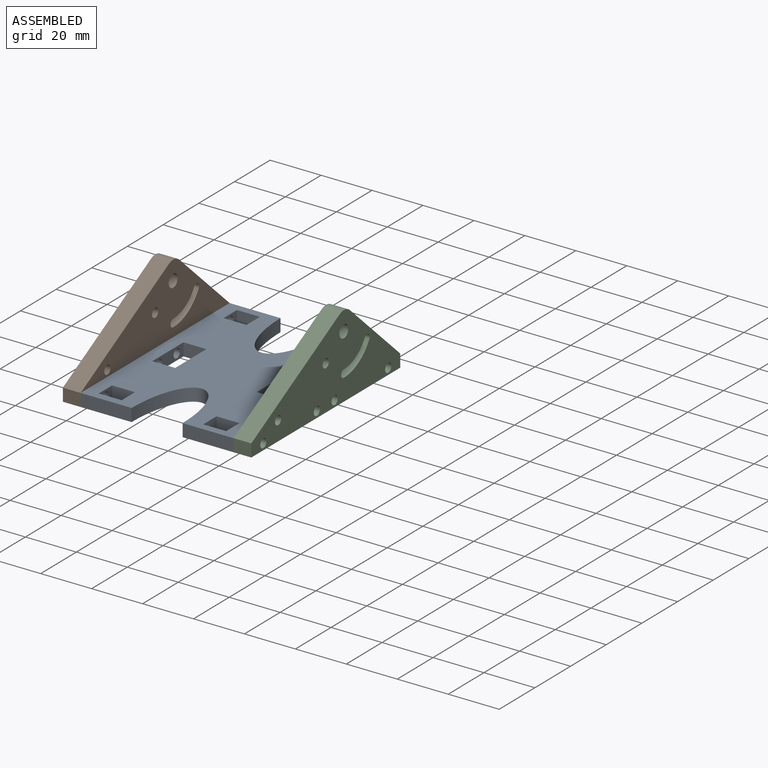
[diagram: assembled view]
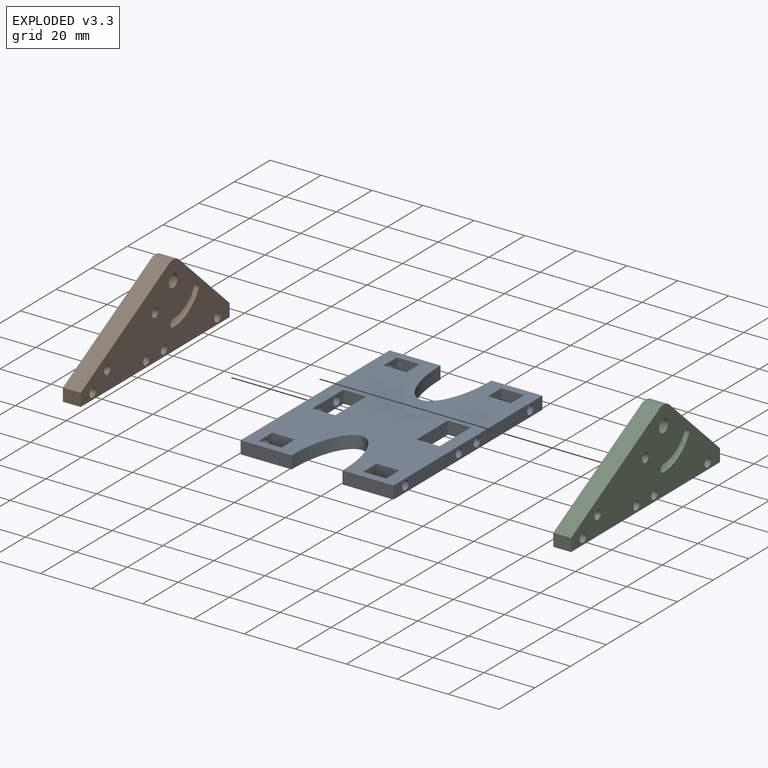
[diagram: exploded view]
GUIDED TOUR — FREECAD ASSEMBLY "Wedge-3"

This assembly has 3 components, labeled P0..P2 below (a component is one placed body or linked part; the same part can appear more than once), held together by 0 modeled joints plus 2 derived contact edges. A joint is a constraint between two components; its type names the relative motion it leaves free:
  CONTACT — a derived adjacency edge — the two components touch in the source model (clearance under 2% of the assembly's diagonal); it is measured from the geometry, not a modeled constraint.
Axis/direction vectors are unit vectors and 'through' points are millimeter coordinates, both in the assembly's world frame.

MATES
  1. CONTACT "contact_0_1": P0 <-> P1, contact direction (-1.000, 0.000, 0.000) through (0.00, -3.44, 2.93) mm (derived from contact, not a modeled constraint)
  2. CONTACT "contact_0_2": P0 <-> P2, contact direction (1.000, 0.000, 0.000) through (60.00, 31.62, 5.00) mm (derived from contact, not a modeled constraint)

ASSEMBLY ORDER
  1. P1 — the base component [order verified]
  2. P0 [order verified]
  3. P2 [order verified]
Order-tag legend:
  [order verified] — this step's position reverses a verified removal order: the component was checked to insert without passing through the ones already placed.

Of the 3 components, 3 carry a construction recipe — the FreeCAD feature program (sketches with constraints, then the solid features that consume them) that regenerates the part from scratch, quoted from this document or from the linked companion document it references; the rest are supplied as boundary geometry only. The tour below walks the components in assembly order: each is shown spotlighted twice — in the assembled view, then in the exploded view, where a leader line traces a displaced component back to its assembled socket (components that stay in place when exploded have no leader line; saturated green if recipe-attached, orange if geometry-only; every other component desaturated gray) — followed by its recipe or geometry summary and the mates that hold it.
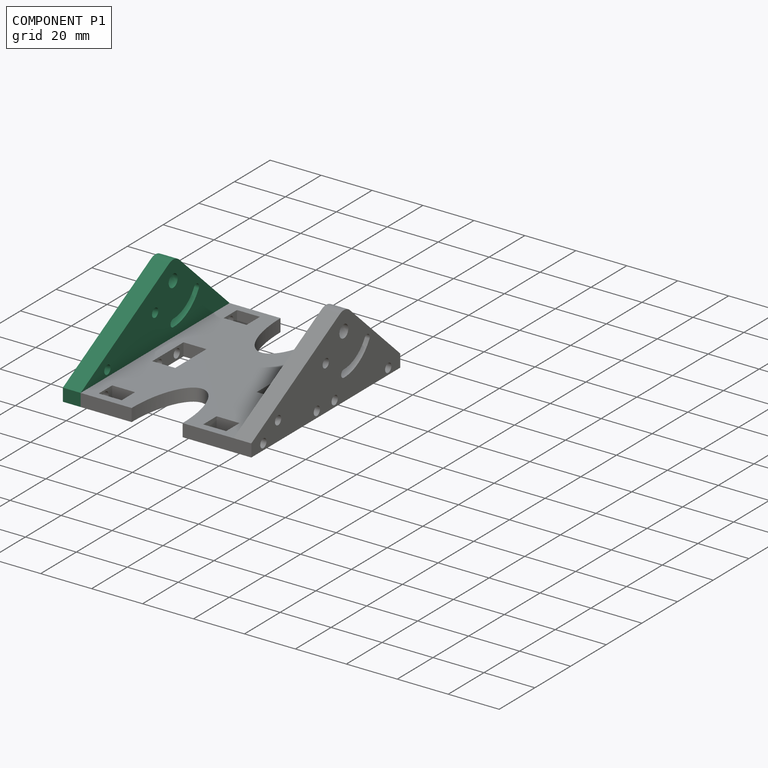
[diagram: component P1 — assembled]
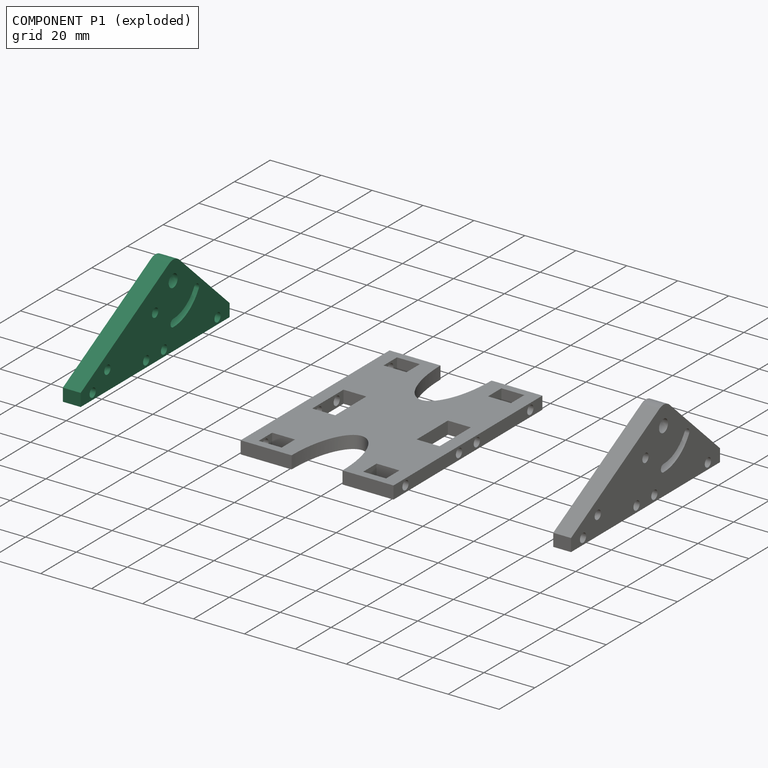
[diagram: component P1 — exploded]
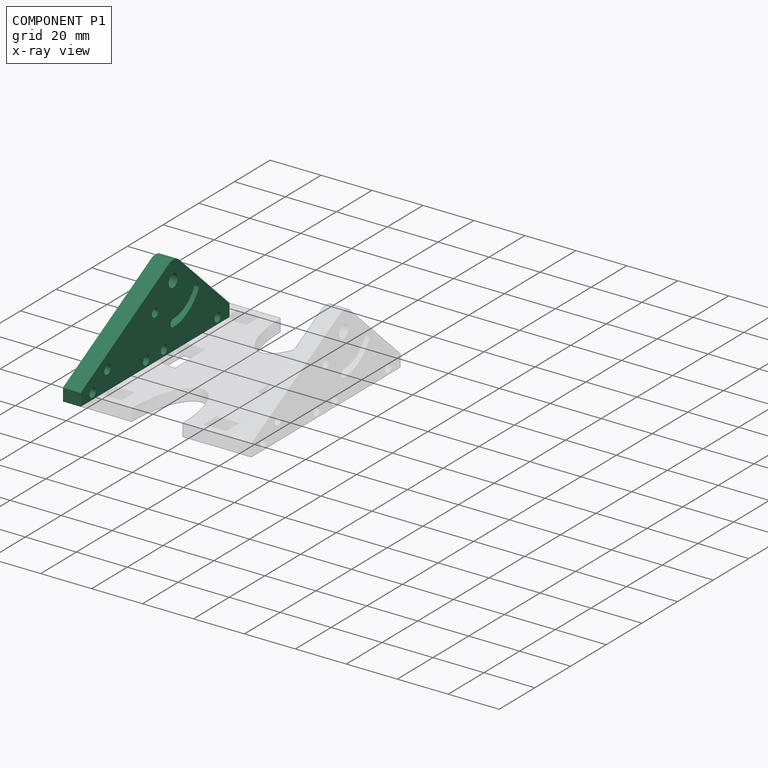
[diagram: component P1 — x-ray view]
COMPONENT P1 — recipe-attached ("Wedge Side001", modeled in this document).
Held by: resting contact with P0 (derived edge).
Construction recipe (the document's own serialized feature program — sketch geometry with constraints, then the solid features built on it; lengths are millimeters unless a unit is written):

FEATURE [Sketcher::SketchObject] Sketch002
  ArcFitTolerance = 1e-06
  AttachmentSupport = -> [YZ_Plane003]
  FullyConstrained = true
  MakeInternals = false
  MapMode = 5
  Placement = pos=(0,0,0) rot=(0.57735,0.57735,0.57735;2.0944rad)
  sketch-geometry (28):
    g0: LineSegment StartX=-51.8817 StartY=0 StartZ=0 EndX=31.6183 EndY=0 EndZ=0
    g1: Circle CenterX=0 CenterY=25 CenterZ=0 NormalX=0 NormalY=0 NormalZ=1 AngleXU=0 Radius=2.5
    g2: ArcOfCircle CenterX=0 CenterY=25 CenterZ=0 NormalX=0 NormalY=0 NormalZ=1 AngleXU=0 Radius=16.5 StartAngle=4.71239 EndAngle=5.75959
    g3: ArcOfCircle CenterX=12.9904 CenterY=17.5 CenterZ=0 NormalX=0 NormalY=0 NormalZ=1 AngleXU=0 Radius=1.5 StartAngle=5.75959 EndAngle=8.90118
    g4: ArcOfCircle CenterX=0 CenterY=10 CenterZ=0 NormalX=0 NormalY=0 NormalZ=1 AngleXU=0 Radius=1.5 StartAngle=1.5708 EndAngle=4.71239
    g5: ArcOfCircle CenterX=0 CenterY=25 CenterZ=0 NormalX=0 NormalY=0 NormalZ=1 AngleXU=0 Radius=13.5 StartAngle=4.71239 EndAngle=5.75959
    g6: LineSegment StartX=-51.8817 StartY=0 StartZ=0 EndX=-51.8817 EndY=5 EndZ=0
    g7: LineSegment StartX=31.6183 StartY=0 StartZ=0 EndX=31.6183 EndY=5 EndZ=0
    g8: LineSegment StartX=3.3997 StartY=31.1663 StartZ=0 EndX=31.6183 EndY=5 EndZ=0
    g9: ArcOfCircle CenterX=0 CenterY=27.5 CenterZ=0 NormalX=0 NormalY=0 NormalZ=1 AngleXU=0 Radius=5 StartAngle=0.823116 EndAngle=2.06853
    g10: Circle CenterX=-36.8817 CenterY=7.5 CenterZ=0 NormalX=0 NormalY=0 NormalZ=1 AngleXU=0 Radius=1.75
    g11: Circle CenterX=-45.1317 CenterY=2.5 CenterZ=0 NormalX=0 NormalY=0 NormalZ=1 AngleXU=0 Radius=1.75
    g12: Circle CenterX=-15.1317 CenterY=2.5 CenterZ=0 NormalX=0 NormalY=0 NormalZ=1 AngleXU=0 Radius=1.75
    g13: Circle CenterX=24.8683 CenterY=2.5 CenterZ=0 NormalX=0 NormalY=0 NormalZ=1 AngleXU=0 Radius=1.75
    g14: Circle CenterX=-5.13173 CenterY=2.5 CenterZ=0 NormalX=0 NormalY=0 NormalZ=1 AngleXU=0 Radius=1.75
    g15: LineSegment [constr] StartX=-45.1317 StartY=2.5 StartZ=0 EndX=-51.8817 EndY=2.5 EndZ=0
    g16: LineSegment [constr] StartX=24.8683 StartY=2.5 StartZ=0 EndX=31.6183 EndY=2.5 EndZ=0
    g17: LineSegment [constr] StartX=-45.1317 StartY=2.5 StartZ=0 EndX=-15.1317 EndY=2.5 EndZ=0
    g18: LineSegment [constr] StartX=-5.13173 StartY=2.5 StartZ=0 EndX=24.8683 EndY=2.5 EndZ=0
    g19: LineSegment StartX=-51.8817 StartY=5 StartZ=0 EndX=-2.38716 EndY=31.8933 EndZ=0
    g20: LineSegment [constr] StartX=0 StartY=27.5 StartZ=0 EndX=0 EndY=32.5 EndZ=0
    g21: LineSegment [constr] StartX=0 StartY=25 StartZ=0 EndX=0 EndY=10 EndZ=0
    g22: LineSegment [constr] StartX=12.9904 StartY=17.5 StartZ=0 EndX=-8e-16 EndY=25 EndZ=0
    g23: LineSegment [constr] StartX=12.9904 StartY=17.5 StartZ=0 EndX=14.0103 EndY=18.5999 EndZ=0
    g24: Circle CenterX=-10.1317 CenterY=17.5 CenterZ=0 NormalX=0 NormalY=0 NormalZ=1 AngleXU=0 Radius=1.75
    g25: LineSegment [constr] StartX=-15.1317 StartY=2.5 StartZ=0 EndX=-5.13173 EndY=2.5 EndZ=0
    g26: LineSegment [constr] StartX=-10.1317 StartY=17.5 StartZ=0 EndX=-10.1317 EndY=2.5 EndZ=0
    g27: LineSegment [constr] StartX=-36.8817 StartY=7.5 StartZ=0 EndX=-36.8817 EndY=2.5 EndZ=0
  constraints (74):
    c: PointOnObject(g0,g-1)
    c: PointOnObject(g0,g-1)
    c: PointOnObject(g1,g-2)
    c: Coincident(g2,g5)
    c: Tangent(g5,g4) = 1.5708
    c: Tangent(g5,g3) = 1.5708
    c: Tangent(g2,g4) = -1.5708
    c: Tangent(g2,g3) = -1.5708
    c: Coincident(g2,g1)
    c: PointOnObject(g4,g-2)
    c: DistanceY(g4) = 10
    c: Coincident(g6,g0)
    c: Vertical(g6)
    c: Coincident(g7,g0)
    c: Vertical(g7)
    c: Coincident(g8,g7)
    c: Equal(g6,g7)
    c: PointOnObject(g9,g-2)
    c: Tangent(g9,g8) = 1.5708
    c: Coincident(g15,g11)
    c: Symmetric(g6,g6,g15)
    c: Horizontal(g15)
    c: Coincident(g16,g13)
    c: Symmetric(g7,g7,g16)
    c: Horizontal(g16)
    c: Equal(g15,g16)
    c: Coincident(g17,g11)
    c: Coincident(g17,g12)
    c: Horizontal(g17)
    c: Coincident(g18,g14)
    c: Coincident(g18,g13)
    c: Horizontal(g18)
    c: Equal(g18,g17)
    c: Diameter(g1) = 5
    c: Equal(g11,g12)
    c: Equal(g12,g14)
    c: Equal(g14,g13)
    c: Diameter(g11) = 3.5
    c: Distance(g11,g6) = 5
    c: DistanceX(g17,g17) = 30
    c: Distance(g6,g6) = 5
    c: Diameter(g3) = 3
    c: Tangent(g19,g9) = 1.5708
    c: Coincident(g19,g6)
    c: Equal(g12,g10)
    c: PointOnObject(g20,g1)
    c: PointOnObject(g20,g9)
    c: Vertical(g20)
    c: DistanceY(g20,g20) = 5
    c: DistanceX(g12,g14) = 10
    c: Coincident(g21,g1)
    c: Coincident(g21,g4)
    c: Coincident(g22,g3)
    c: Coincident(g22,g1)
    c: Angle(g21,g22) = 1.0472
    c: DistanceY(g21,g21) = 15
    c: Coincident(g23,g3)
    c: PointOnObject(g23,g3)
    c: Perpendicular(g8,g23)
    c: Distance(g23,g8) = 2
    c: Coincident(g9,g20)
    c: Equal(g24,g12)
    c: Coincident(g25,g12)
    c: Coincident(g25,g14)
    c: Coincident(g26,g24)
    c: Symmetric(g25,g25,g26)
    c: Vertical(g26)
    c: DistanceY(g26,g26) = 15
    c: Coincident(g27,g10)
    c: PointOnObject(g27,g17)
    c: Vertical(g27)
    c: Distance(g27,g27) = 5
    c: Distance(g6,g27) = 15
    c: Distance(g1,g4) = 15
FEATURE [PartDesign::Pad] Pad001
  Direction = (1,0,0)
  Length = 7
  Length2 = 10
  Placement = pos=(0,0,0) rot=(1,1,1;2.0944rad)
  Profile = -> Sketch002
  ReferenceAxis = -> Sketch002 [N_Axis]
  Refine = true
  Suppressed = false
  Type = 0
FEATURE [PartDesign::Body] Body001
  AllowCompound = false
  Group = -> [Sketch002,Pad001]
  Origin = -> Origin003
  Tip = -> Pad001
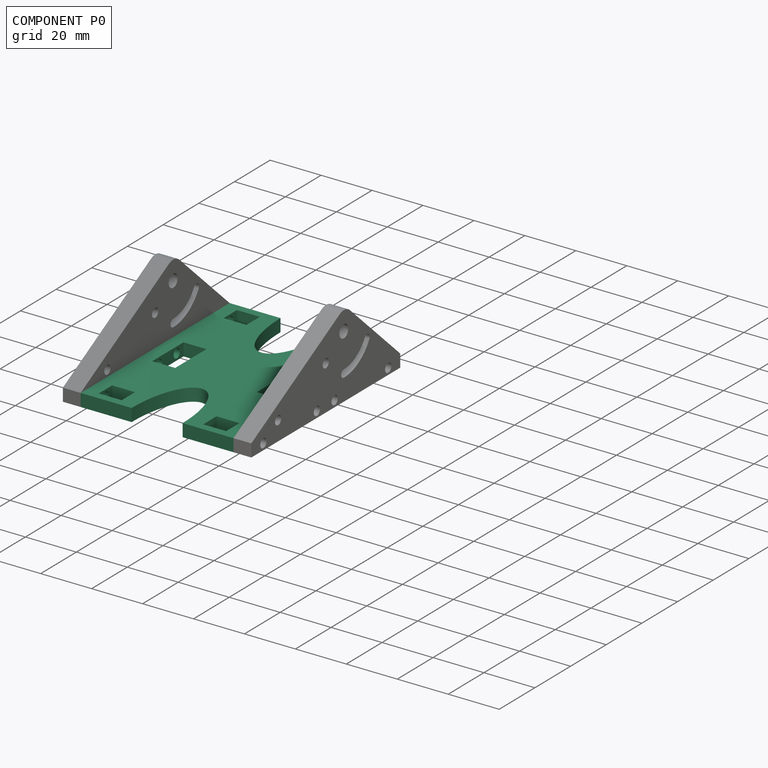
[diagram: component P0 — assembled]
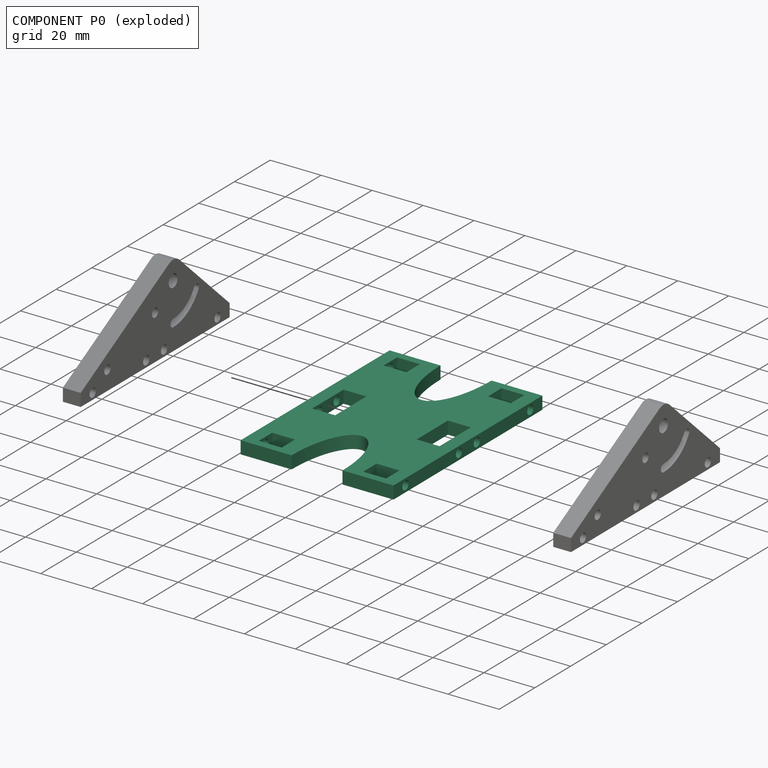
[diagram: component P0 — exploded]
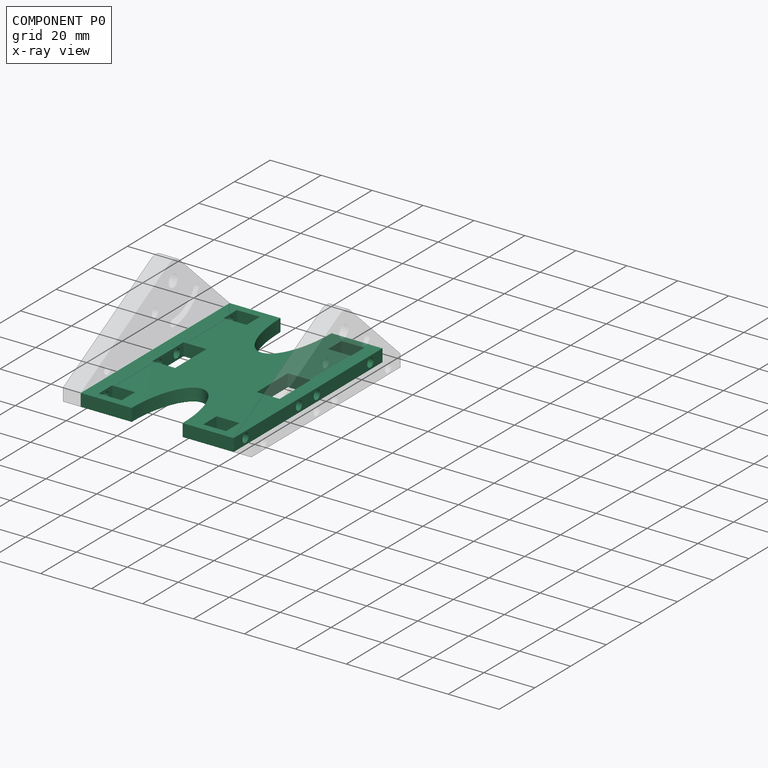
[diagram: component P0 — x-ray view]
COMPONENT P0 — recipe-attached ("Wedge Bottom001", modeled in this document).
Held by: resting contact with P1 (derived edge); resting contact with P2 (derived edge).
Construction recipe (the document's own serialized feature program — sketch geometry with constraints, then the solid features built on it; lengths are millimeters unless a unit is written):

FEATURE [PartDesign::SubShapeBinder] Binder
  BindCopyOnChange = 0
  BindMode = 0
  ClaimChildren = false
  Context = -> Part002 [Body002.Binder.]
  Fuse = false
  MakeFace = true
  OffsetFill = false
  OffsetIntersection = false
  OffsetJoinType = 0
  OffsetOpenResult = false
  PartialLoad = false
  Refine = true
  Relative = true
  Support = -> [Part001[Body001.Pad001.Face19]]
  _Version = 2
FEATURE [Sketcher::SketchObject] Sketch003
  ArcFitTolerance = 1e-06
  AttachmentSupport = -> [YZ_Plane005]
  ExternalGeometry = -> [Binder]
  FullyConstrained = true
  MakeInternals = false
  MapMode = 5
  Placement = pos=(0,0,0) rot=(0.57735,0.57735,0.57735;2.0944rad)
  sketch-geometry (4):
    g0: LineSegment StartX=-51.8817 StartY=5 StartZ=0 EndX=-51.8817 EndY=0 EndZ=0
    g1: LineSegment StartX=-51.8817 StartY=0 StartZ=0 EndX=31.6183 EndY=0 EndZ=0
    g2: LineSegment StartX=31.6183 StartY=0 StartZ=0 EndX=31.6183 EndY=5 EndZ=0
    g3: LineSegment StartX=31.6183 StartY=5 StartZ=0 EndX=-51.8817 EndY=5 EndZ=0
  constraints (10):
    c: Coincident(g0,g1)
    c: Coincident(g1,g2)
    c: Coincident(g2,g3)
    c: Coincident(g3,g0)
    c: Vertical(g0)
    c: Vertical(g2)
    c: Horizontal(g1)
    c: Horizontal(g3)
    c: Coincident(g0,g-3)
    c: Coincident(g1,g-4)
FEATURE [PartDesign::Pad] Pad002
  Direction = (1,0,0)
  Length = 60
  Length2 = 10
  Placement = pos=(0,0,0) rot=(1,1,1;2.0944rad)
  Profile = -> Sketch003
  ReferenceAxis = -> Sketch003 [N_Axis]
  Refine = true
  Suppressed = false
  Type = 0
FEATURE [Sketcher::SketchObject] Sketch004
  ArcFitTolerance = 1e-06
  AttachmentSupport = -> [Pad002]
  ExternalGeometry = -> [Binder]
  FullyConstrained = true
  MakeInternals = false
  MapMode = 5
  Placement = pos=(1.3e-15,0,0) rot=(0.57735,0.57735,-0.57735;4.18879rad)
  sketch-geometry (4):
    g0: Circle CenterX=24.8683 CenterY=-2.5 CenterZ=0 NormalX=0 NormalY=0 NormalZ=1 AngleXU=0 Radius=1.75
    g1: Circle CenterX=-5.13173 CenterY=-2.5 CenterZ=0 NormalX=0 NormalY=0 NormalZ=1 AngleXU=0 Radius=1.75
    g2: Circle CenterX=-15.1317 CenterY=-2.5 CenterZ=0 NormalX=0 NormalY=0 NormalZ=1 AngleXU=0 Radius=1.75
    g3: Circle CenterX=-45.1317 CenterY=-2.5 CenterZ=0 NormalX=0 NormalY=0 NormalZ=1 AngleXU=0 Radius=1.75
  constraints (8):
    c: Coincident(g0,g-3)
    c: Equal(g0,g-3)
    c: Coincident(g1,g-4)
    c: Equal(g1,g-4)
    c: Coincident(g2,g-5)
    c: Equal(g2,g-5)
    c: Coincident(g3,g-6)
    c: Equal(g3,g-6)
FEATURE [Sketcher::SketchObject] Sketch006
  ArcFitTolerance = 1e-06
  AttachmentSupport = -> [Pad002]
  ExternalGeometry = -> [Binder]
  FullyConstrained = true
  MakeInternals = false
  MapMode = 5
  Placement = pos=(60,-7.8e-15,3.9e-15) rot=(0.57735,0.57735,0.57735;2.0944rad)
  sketch-geometry (4):
    g0: Circle CenterX=-45.1317 CenterY=2.5 CenterZ=0 NormalX=0 NormalY=0 NormalZ=1 AngleXU=0 Radius=1.75
    g1: Circle CenterX=-15.1317 CenterY=2.5 CenterZ=0 NormalX=0 NormalY=0 NormalZ=1 AngleXU=0 Radius=1.75
    g2: Circle CenterX=-5.13173 CenterY=2.5 CenterZ=0 NormalX=0 NormalY=0 NormalZ=1 AngleXU=0 Radius=1.75
    g3: Circle CenterX=24.8683 CenterY=2.5 CenterZ=0 NormalX=0 NormalY=0 NormalZ=1 AngleXU=0 Radius=1.75
  constraints (8):
    c: Coincident(g0,g-3)
    c: Equal(g0,g-3)
    c: Coincident(g1,g-4)
    c: Equal(g1,g-4)
    c: Coincident(g2,g-5)
    c: Equal(g2,g-5)
    c: Coincident(g3,g-6)
    c: Equal(g3,g-6)
FEATURE [Sketcher::SketchObject] Sketch005
  ArcFitTolerance = 1e-06
  AttachmentSupport = -> [Pad002]
  ExternalGeometry = -> [Sketch004,Sketch006,Pad002]
  FullyConstrained = true
  MakeInternals = false
  MapMode = 5
  Placement = pos=(-3e-16,1.2e-15,5) rot=(0,0,-1;1.5708rad)
  sketch-geometry (87):
    g0: LineSegment [constr] StartX=-26.6183 StartY=7 StartZ=0 EndX=-23.1183 EndY=7 EndZ=0
    g1: LineSegment [constr] StartX=-23.1183 StartY=7 StartZ=0 EndX=-23.1183 EndY=12 EndZ=0
    g2: LineSegment [constr] StartX=-23.1183 StartY=12 StartZ=0 EndX=-26.6183 EndY=12 EndZ=0
    g3: LineSegment [constr] StartX=-26.6183 StartY=12 StartZ=0 EndX=-26.6183 EndY=7 EndZ=0
    g4: LineSegment [constr] StartX=3.38173 StartY=7 StartZ=0 EndX=16.8817 EndY=7 EndZ=0
    g5: LineSegment [constr] StartX=16.8817 StartY=7 StartZ=0 EndX=16.8817 EndY=12 EndZ=0
    g6: LineSegment [constr] StartX=16.8817 StartY=12 StartZ=0 EndX=3.38173 EndY=12 EndZ=0
    g7: LineSegment [constr] StartX=3.38173 StartY=12 StartZ=0 EndX=3.38173 EndY=7 EndZ=0
    g8: LineSegment [constr] StartX=43.3817 StartY=7 StartZ=0 EndX=46.8817 EndY=7 EndZ=0
    g9: LineSegment [constr] StartX=46.8817 StartY=7 StartZ=0 EndX=46.8817 EndY=12 EndZ=0
    g10: LineSegment [constr] StartX=46.8817 StartY=12 StartZ=0 EndX=43.3817 EndY=12 EndZ=0
    g11: LineSegment [constr] StartX=43.3817 StartY=12 StartZ=0 EndX=43.3817 EndY=7 EndZ=0
    g12: LineSegment [constr] StartX=-31.6183 StartY=30 StartZ=0 EndX=51.8817 EndY=30 EndZ=0
    g13: LineSegment [constr] StartX=-26.6183 StartY=53 StartZ=0 EndX=-23.1183 EndY=53 EndZ=0
    g14: LineSegment [constr] StartX=-23.1183 StartY=53 StartZ=0 EndX=-23.1183 EndY=48 EndZ=0
    g15: LineSegment [constr] StartX=-23.1183 StartY=48 StartZ=0 EndX=-26.6183 EndY=48 EndZ=0
    g16: LineSegment [constr] StartX=-26.6183 StartY=48 StartZ=0 EndX=-26.6183 EndY=53 EndZ=0
    g17: LineSegment [constr] StartX=3.38173 StartY=53 StartZ=0 EndX=16.8817 EndY=53 EndZ=0
    g18: LineSegment [constr] StartX=16.8817 StartY=53 StartZ=0 EndX=16.8817 EndY=48 EndZ=0
    g19: LineSegment [constr] StartX=16.8817 StartY=48 StartZ=0 EndX=3.38173 EndY=48 EndZ=0
    g20: LineSegment [constr] StartX=3.38173 StartY=48 StartZ=0 EndX=3.38173 EndY=53 EndZ=0
    g21: LineSegment [constr] StartX=43.3817 StartY=53 StartZ=0 EndX=46.8817 EndY=53 EndZ=0
    g22: LineSegment [constr] StartX=46.8817 StartY=53 StartZ=0 EndX=46.8817 EndY=48 EndZ=0
    g23: LineSegment [constr] StartX=46.8817 StartY=48 StartZ=0 EndX=43.3817 EndY=48 EndZ=0
    g24: LineSegment [constr] StartX=43.3817 StartY=48 StartZ=0 EndX=43.3817 EndY=53 EndZ=0
    g25: LineSegment [constr] StartX=-23.1183 StartY=48 StartZ=0 EndX=-23.1183 EndY=46 EndZ=0
    g26: LineSegment [constr] StartX=-23.1183 StartY=53 StartZ=0 EndX=-21.1183 EndY=53 EndZ=0
    g27: LineSegment [constr] StartX=-26.6183 StartY=48 StartZ=0 EndX=-28.6183 EndY=48 EndZ=0
    g28: LineSegment [constr] StartX=-26.6183 StartY=53 StartZ=0 EndX=-26.6183 EndY=55 EndZ=0
    g29: LineSegment StartX=-28.6183 StartY=55 StartZ=0 EndX=-21.1183 EndY=55 EndZ=0
    g30: LineSegment StartX=-21.1183 StartY=55 StartZ=0 EndX=-21.1183 EndY=46 EndZ=0
    g31: LineSegment StartX=-28.6183 StartY=55 StartZ=0 EndX=-28.6183 EndY=46 EndZ=0
    g32: LineSegment StartX=-28.6183 StartY=46 StartZ=0 EndX=-21.1183 EndY=46 EndZ=0
    g33: LineSegment [constr] StartX=3.38173 StartY=53 StartZ=0 EndX=3.38173 EndY=55 EndZ=0
    g34: LineSegment [constr] StartX=16.8817 StartY=53 StartZ=0 EndX=18.8817 EndY=53 EndZ=0
    g35: LineSegment [constr] StartX=16.8817 StartY=48 StartZ=0 EndX=16.8817 EndY=46 EndZ=0
    g36: LineSegment [constr] StartX=3.38173 StartY=48 StartZ=0 EndX=1.38173 EndY=48 EndZ=0
    g37: LineSegment StartX=1.38173 StartY=55 StartZ=0 EndX=18.8817 EndY=55 EndZ=0
    g38: LineSegment StartX=1.38173 StartY=55 StartZ=0 EndX=1.38173 EndY=46 EndZ=0
    g39: LineSegment StartX=1.38173 StartY=46 StartZ=0 EndX=18.8817 EndY=46 EndZ=0
    g40: LineSegment StartX=18.8817 StartY=55 StartZ=0 EndX=18.8817 EndY=46 EndZ=0
    g41: LineSegment [constr] StartX=46.8817 StartY=53 StartZ=0 EndX=48.8817 EndY=53 EndZ=0
    g42: LineSegment [constr] StartX=46.8817 StartY=48 StartZ=0 EndX=46.8817 EndY=46 EndZ=0
    g43: LineSegment [constr] StartX=43.3817 StartY=48 StartZ=0 EndX=41.3817 EndY=48 EndZ=0
    g44: LineSegment [constr] StartX=43.3817 StartY=53 StartZ=0 EndX=43.3817 EndY=55 EndZ=0
    g45: LineSegment StartX=41.3817 StartY=55 StartZ=0 EndX=48.8817 EndY=55 EndZ=0
    g46: LineSegment StartX=41.3817 StartY=55 StartZ=0 EndX=41.3817 EndY=46 EndZ=0
    g47: LineSegment StartX=41.3817 StartY=46 StartZ=0 EndX=48.8817 EndY=46 EndZ=0
    g48: LineSegment StartX=48.8817 StartY=55 StartZ=0 EndX=48.8817 EndY=46 EndZ=0
    g49: LineSegment [constr] StartX=-23.1183 StartY=12 StartZ=0 EndX=-21.1183 EndY=12 EndZ=0
    g50: LineSegment [constr] StartX=-23.1183 StartY=7 StartZ=0 EndX=-23.1183 EndY=5 EndZ=0
    g51: LineSegment [constr] StartX=-26.6183 StartY=7 StartZ=0 EndX=-28.6183 EndY=7 EndZ=0
    g52: LineSegment [constr] StartX=-26.6183 StartY=12 StartZ=0 EndX=-26.6183 EndY=14 EndZ=0
    g53: LineSegment StartX=-28.6183 StartY=14 StartZ=0 EndX=-21.1183 EndY=14 EndZ=0
    g54: LineSegment StartX=-21.1183 StartY=14 StartZ=0 EndX=-21.1183 EndY=5 EndZ=0
    g55: LineSegment StartX=-21.1183 StartY=5 StartZ=0 EndX=-28.6183 EndY=5 EndZ=0
    g56: LineSegment StartX=-28.6183 StartY=14 StartZ=0 EndX=-28.6183 EndY=5 EndZ=0
    g57: LineSegment [constr] StartX=3.38173 StartY=12 StartZ=0 EndX=3.38173 EndY=14 EndZ=0
    g58: LineSegment [constr] StartX=16.8817 StartY=12 StartZ=0 EndX=18.8817 EndY=12 EndZ=0
    g59: LineSegment [constr] StartX=16.8817 StartY=7 StartZ=0 EndX=16.8817 EndY=5 EndZ=0
    g60: LineSegment [constr] StartX=3.38173 StartY=7 StartZ=0 EndX=1.38173 EndY=7 EndZ=0
    g61: LineSegment StartX=1.38173 StartY=14 StartZ=0 EndX=18.8817 EndY=14 EndZ=0
    g62: LineSegment StartX=18.8817 StartY=14 StartZ=0 EndX=18.8817 EndY=5 EndZ=0
    g63: LineSegment StartX=1.38173 StartY=14 StartZ=0 EndX=1.38173 EndY=5 EndZ=0
    g64: LineSegment StartX=1.38173 StartY=5 StartZ=0 EndX=18.8817 EndY=5 EndZ=0
    g65: LineSegment [constr] StartX=43.3817 StartY=12 StartZ=0 EndX=43.3817 EndY=14 EndZ=0
    g66: LineSegment [constr] StartX=46.8817 StartY=12 StartZ=0 EndX=48.8817 EndY=12 EndZ=0
    g67: LineSegment [constr] StartX=46.8817 StartY=7 StartZ=0 EndX=46.8817 EndY=5 EndZ=0
    g68: LineSegment [constr] StartX=43.3817 StartY=7 StartZ=0 EndX=41.3817 EndY=7 EndZ=0
    g69: LineSegment StartX=41.3817 StartY=14 StartZ=0 EndX=48.8817 EndY=14 EndZ=0
    g70: LineSegment StartX=48.8817 StartY=14 StartZ=0 EndX=48.8817 EndY=5 EndZ=0
    g71: LineSegment StartX=48.8817 StartY=5 StartZ=0 EndX=41.3817 EndY=5 EndZ=0
    g72: LineSegment StartX=41.3817 StartY=14 StartZ=0 EndX=41.3817 EndY=5 EndZ=0
    g73: ArcOfEllipse CenterX=-31.6183 CenterY=30 CenterZ=0 NormalX=0 NormalY=0 NormalZ=1 MajorRadius=25 MinorRadius=10 AngleXU=-2e-16 StartAngle=4.71239 EndAngle=7.85398
    g74: LineSegment [constr] StartX=-6.61827 StartY=30 StartZ=0 EndX=-56.6183 EndY=30 EndZ=0
    g75: LineSegment [constr] StartX=-31.6183 StartY=40 StartZ=0 EndX=-31.6183 EndY=20 EndZ=0
    g76: GeomPoint [constr] X=-8.7054 Y=30 Z=0
    g77: GeomPoint [constr] X=-54.5312 Y=30 Z=0
    g78: LineSegment StartX=-31.6183 StartY=40 StartZ=0 EndX=-31.6183 EndY=20 EndZ=0
    g79: GeomPoint [constr] X=10.1317 Y=30 Z=0
    g80: LineSegment [constr] StartX=10.1317 StartY=60 StartZ=0 EndX=10.1317 EndY=0 EndZ=0
    g81: ArcOfEllipse CenterX=51.8817 CenterY=30 CenterZ=0 NormalX=0 NormalY=0 NormalZ=1 MajorRadius=25 MinorRadius=10 AngleXU=-3.14159 StartAngle=4.71239 EndAngle=7.85398
    g82: LineSegment [constr] StartX=51.8817 StartY=40 StartZ=0 EndX=51.8817 EndY=20 EndZ=0
    g83: GeomPoint [constr] X=28.9688 Y=30 Z=0
    g84: LineSegment StartX=51.8817 StartY=40 StartZ=0 EndX=51.8817 EndY=20 EndZ=0
    g85: LineSegment [constr] StartX=26.8817 StartY=30 StartZ=0 EndX=76.8817 EndY=30 EndZ=0
    g86: GeomPoint [constr] X=74.7946 Y=30 Z=0
  constraints (246):
    c: Coincident(g0,g1)
    c: Coincident(g1,g2)
    c: Coincident(g2,g3)
    c: Coincident(g3,g0)
    c: Horizontal(g0)
    c: Horizontal(g2)
    c: Vertical(g1)
    c: Vertical(g3)
    c: Coincident(g4,g5)
    c: Coincident(g5,g6)
    c: Coincident(g6,g7)
    c: Coincident(g7,g4)
    c: Horizontal(g4)
    c: Horizontal(g6)
    c: Vertical(g5)
    c: Vertical(g7)
    c: Coincident(g8,g9)
    c: Coincident(g9,g10)
    c: Coincident(g10,g11)
    c: Coincident(g11,g8)
    c: Horizontal(g8)
    c: Horizontal(g10)
    c: Vertical(g9)
    c: Vertical(g11)
    c: PointOnObject(g12,g-11)
    c: PointOnObject(g12,g-12)
    c: Symmetric(g-8,g-4,g12)
    c: Vertical(g0,g-3)
    c: Vertical(g0,g-3)
    c: Vertical(g4,g-4)
    c: Vertical(g4,g-5)
    c: Vertical(g8,g-6)
    c: Vertical(g8,g-6)
    c: Horizontal(g8,g4)
    c: Horizontal(g4,g0)
    c: Horizontal(g1,g6)
    c: Horizontal(g6,g10)
    c: Distance(g-1,g4) = 7
    c: Distance(g5,g5) = 5
    c: Coincident(g13,g14)
    c: Coincident(g14,g15)
    c: Coincident(g15,g16)
    c: Coincident(g16,g13)
    c: Coincident(g17,g18)
    c: Coincident(g18,g19)
    c: Coincident(g19,g20)
    c: Coincident(g20,g17)
    c: Coincident(g21,g22)
    c: Coincident(g22,g23)
    c: Coincident(g23,g24)
    c: Coincident(g24,g21)
    c: Distance(g18,g18) = 5
    c: Equal(g13,g-7)
    c: Vertical(g16)
    c: Vertical(g14)
    c: Vertical(g20)
    c: Vertical(g18)
    c: Vertical(g24)
    c: Vertical(g22)
    c: Horizontal(g15)
    c: Horizontal(g13)
    c: Horizontal(g19)
    c: Horizontal(g17)
    c: Horizontal(g23)
    c: Horizontal(g21)
    c: Vertical(g13,g-7)
    c: Vertical(g17,g-8)
    c: Vertical(g17,g-9)
    c: Vertical(g21,g-10)
    c: Vertical(g21,g-10)
    c: Horizontal(g13,g17)
    c: Horizontal(g17,g21)
    c: Horizontal(g23,g18)
    c: Horizontal(g18,g14)
    c: DistanceY(g17,g-9) = 7
    c: Coincident(g25,g14)
    c: Vertical(g25)
    c: Coincident(g26,g13)
    c: Horizontal(g26)
    c: Coincident(g27,g15)
    c: Horizontal(g27)
    c: Coincident(g28,g13)
    c: Vertical(g28)
    c: Equal(g28,g26)
    c: Equal(g26,g25)
    c: Equal(g25,g27)
    c: Horizontal(g29)
    c: PointOnObject(g28,g29)
    c: Coincident(g30,g29)
    c: Vertical(g30)
    c: PointOnObject(g26,g30)
    c: Coincident(g31,g29)
    c: Vertical(g31)
    c: PointOnObject(g27,g31)
    c: Coincident(g32,g31)
    c: Coincident(g32,g30)
    c: PointOnObject(g25,g32)
    c: Horizontal(g32)
    c: DistanceY(g28,g28) = 2
    c: Coincident(g33,g17)
    c: Vertical(g33)
    c: Coincident(g34,g17)
    c: Horizontal(g34)
    c: Coincident(g35,g18)
    c: Vertical(g35)
    c: Coincident(g36,g19)
    c: Horizontal(g36)
    c: Equal(g36,g33)
    c: Equal(g33,g34)
    c: Equal(g34,g35)
    c: Equal(g33,g28)
    c: Horizontal(g37)
    c: PointOnObject(g33,g37)
    c: Coincident(g38,g37)
    c: Vertical(g38)
    c: PointOnObject(g36,g38)
    c: Coincident(g39,g38)
    c: Horizontal(g39)
    c: PointOnObject(g35,g39)
    c: Coincident(g40,g37)
    c: Coincident(g40,g39)
    c: PointOnObject(g34,g40)
    c: Vertical(g40)
    c: Coincident(g41,g21)
    c: Horizontal(g41)
    c: Coincident(g42,g22)
    c: Vertical(g42)
    c: Coincident(g43,g23)
    c: Horizontal(g43)
    c: Coincident(g44,g21)
    c: Vertical(g44)
    c: Equal(g44,g41)
    c: Equal(g41,g42)
    c: Equal(g42,g43)
    c: Horizontal(g45)
    c: PointOnObject(g44,g45)
    c: Coincident(g46,g45)
    c: Vertical(g46)
    c: PointOnObject(g43,g46)
    c: Coincident(g47,g46)
    c: Horizontal(g47)
    c: PointOnObject(g42,g47)
    c: Coincident(g48,g45)
    c: Coincident(g48,g47)
    c: Vertical(g48)
    c: PointOnObject(g41,g48)
    c: Equal(g44,g34)
    c: Coincident(g49,g1)
    c: Horizontal(g49)
    c: Coincident(g50,g0)
    c: Vertical(g50)
    c: Coincident(g51,g0)
    c: Horizontal(g51)
    c: Coincident(g52,g2)
    c: Vertical(g52)
    c: Equal(g52,g49)
    c: Equal(g49,g50)
    c: Equal(g50,g51)
    c: Horizontal(g53)
    c: PointOnObject(g52,g53)
    c: Coincident(g54,g53)
    c: Vertical(g54)
    c: PointOnObject(g49,g54)
    c: Coincident(g55,g54)
    c: Horizontal(g55)
    c: PointOnObject(g50,g55)
    c: Coincident(g56,g53)
    c: Coincident(g56,g55)
    c: Vertical(g56)
    c: PointOnObject(g51,g56)
    c: Equal(g52,g25)
    c: Coincident(g57,g6)
    c: Vertical(g57)
    c: Coincident(g58,g5)
    c: Horizontal(g58)
    c: Coincident(g59,g4)
    c: Vertical(g59)
    c: Coincident(g60,g4)
    c: Horizontal(g60)
    c: Equal(g60,g57)
    c: Equal(g57,g58)
    c: Equal(g58,g59)
    c: Horizontal(g61)
    c: PointOnObject(g57,g61)
    c: Coincident(g62,g61)
    c: Vertical(g62)
    c: PointOnObject(g58,g62)
    c: Coincident(g63,g61)
    c: Vertical(g63)
    c: PointOnObject(g60,g63)
    c: Coincident(g64,g63)
    c: Coincident(g64,g62)
    c: Horizontal(g64)
    c: PointOnObject(g59,g64)
    c: Equal(g57,g52)
    c: Coincident(g65,g10)
    c: Vertical(g65)
    c: Coincident(g66,g9)
    c: Horizontal(g66)
    c: Coincident(g67,g8)
    c: Vertical(g67)
    c: Coincident(g68,g8)
    c: Horizontal(g68)
    c: Horizontal(g69)
    c: PointOnObject(g65,g69)
    c: Coincident(g70,g69)
    c: Vertical(g70)
    c: PointOnObject(g66,g70)
    c: Coincident(g71,g70)
    c: Horizontal(g71)
    c: PointOnObject(g67,g71)
    c: Coincident(g72,g69)
    c: Coincident(g72,g71)
    c: Vertical(g72)
    c: PointOnObject(g68,g72)
    c: Equal(g68,g65)
    c: Equal(g65,g66)
    c: Equal(g66,g67)
    c: Equal(g65,g58)
    c: InternalAlignment(g74-g77 -> g73) x4
    c: Coincident(g73,g12)
    c: Vertical(g75)
    c: Coincident(g78,g73)
    c: Coincident(g78,g73)
    c: Symmetric(g12,g12,g79)
    c: PointOnObject(g80,g-1)
    c: Vertical(g80)
    c: PointOnObject(g79,g80)
    c: Horizontal(g80,g-8)
    c: Distance(g78,g78) = 20
    c: DistanceX(g74,g74) = 50
    c: Vertical(g78)
    c: PointOnObject(g73,g-11)
    c: InternalAlignment(g85,g81)
    c: InternalAlignment(g82,g81)
    c: InternalAlignment(g83,g81)
    c: InternalAlignment(g86,g81)
    c: Vertical(g82)
    c: Coincident(g84,g81)
    c: Coincident(g84,g81)
    c: Distance(g84,g84) = 20
    c: Vertical(g84)
    c: PointOnObject(g81,g-12)
    c: Coincident(g81,g12)
    c: DistanceX(g85,g85) = 50
    c: Distance(g-8,g37) = 5
FEATURE [PartDesign::Pocket] Pocket001
  BaseFeature = -> Pad002
  Direction = (0,0,-1)
  Length = 5
  Length2 = 5
  Placement = pos=(0,0,0) rot=(1,1,1;2.0944rad)
  Profile = -> Sketch005
  ReferenceAxis = -> Sketch005 [N_Axis]
  Refine = true
  Suppressed = false
  Type = 2
FEATURE [PartDesign::Pocket] Pocket002
  BaseFeature = -> Pocket001
  Direction = (1,0,0)
  Length = 5
  Length2 = 5
  Placement = pos=(0,0,0) rot=(1,1,1;2.0944rad)
  Profile = -> Sketch004
  ReferenceAxis = -> Sketch004 [N_Axis]
  Refine = true
  Suppressed = false
  Type = 2
FEATURE [PartDesign::Pocket] Pocket003
  BaseFeature = -> Pocket002
  Direction = (-1,0,0)
  Length = 5
  Length2 = 5
  Placement = pos=(0,0,0) rot=(1,1,1;2.0944rad)
  Profile = -> Sketch006
  ReferenceAxis = -> Sketch006 [N_Axis]
  Refine = true
  Suppressed = false
  Type = 2
FEATURE [PartDesign::Body] Body002
  AllowCompound = false
  Group = -> [Binder,Sketch003,Pad002,Sketch004,Sketch005,Sketch006,Pocket001,Pocket002,Pocket003]
  Origin = -> Origin005
  Tip = -> Pocket003
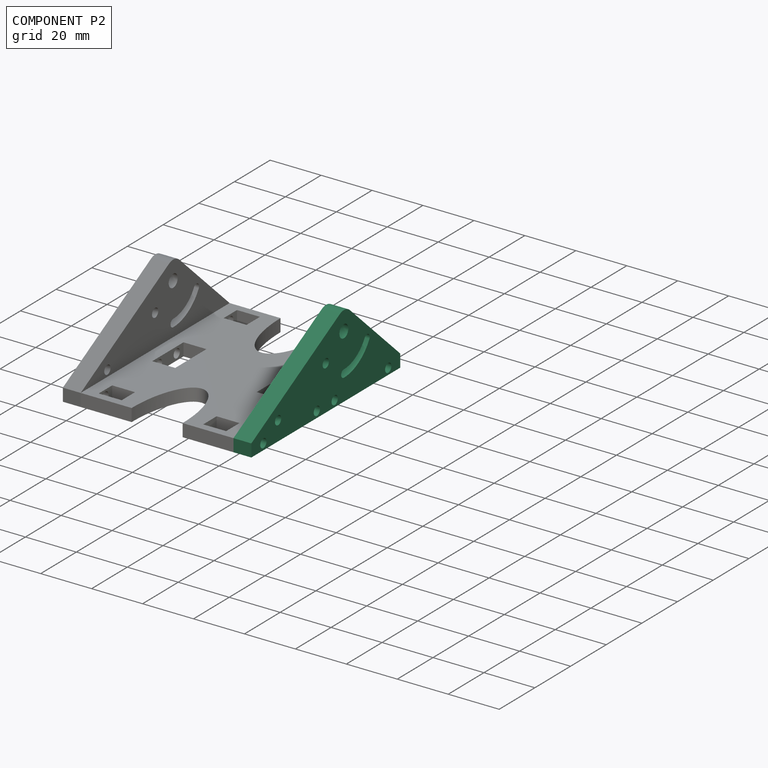
[diagram: component P2 — assembled]
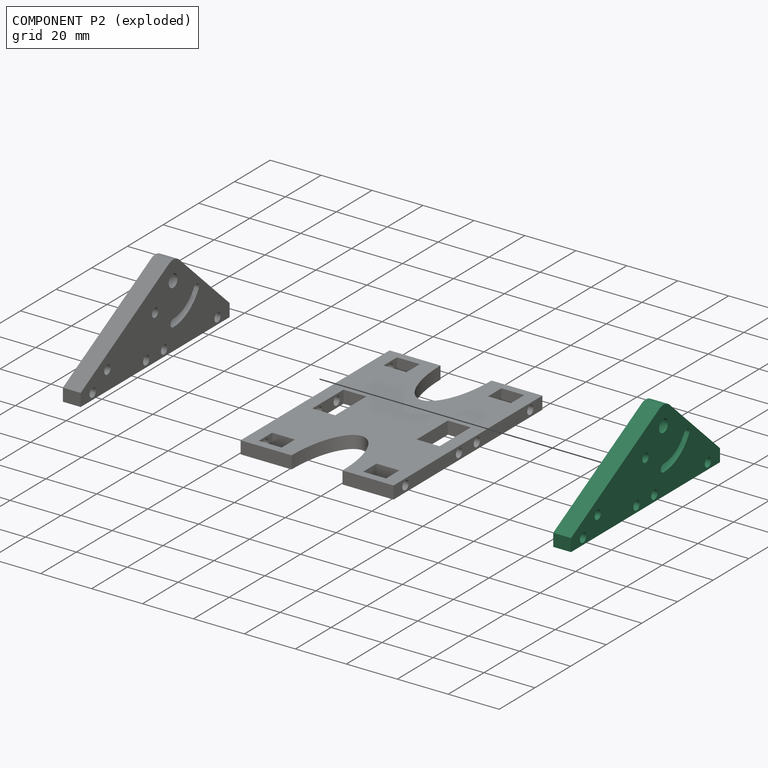
[diagram: component P2 — exploded]
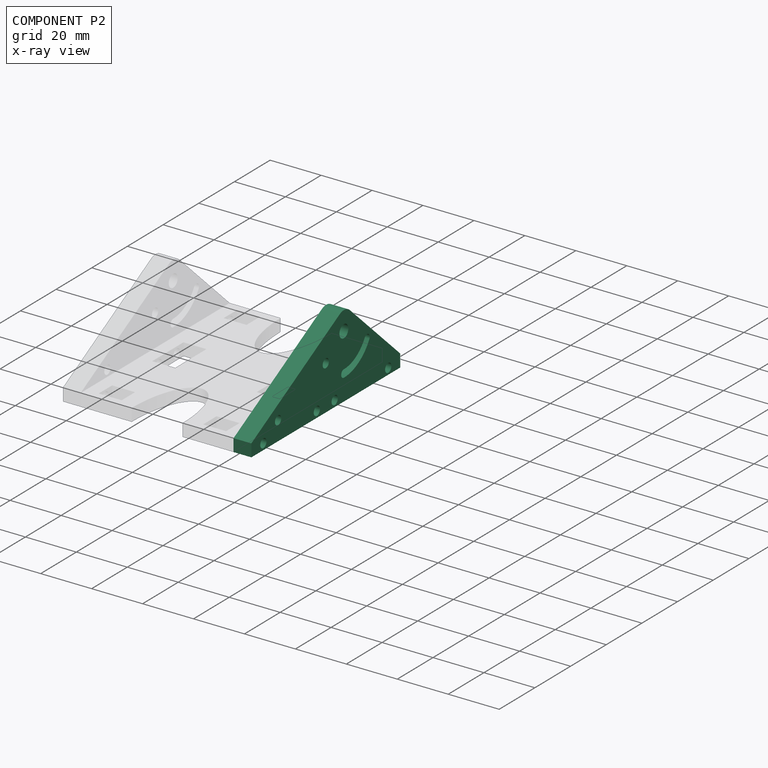
[diagram: component P2 — x-ray view]
COMPONENT P2 — same part as P1; its construction recipe is shown at P1.
Held by: resting contact with P0 (derived edge).
PROVENANCE & LICENSES
Assembly and component geometry: a FreeCAD (.FCStd) document from a public repository crawl; components, placements and joints were extracted with FreeCAD and each solid tessellated.
Construction recipes: the document's own serialized feature recipes (and, for linked parts, the recipes of companion documents from the same project).
License: as declared in the source repository (recorded in the dataset sidecar).
Joints: native FreeCAD joints and A2plus constraints are mapped to standard mate types; edges marked 'derived from contact' connect touching components and are measured from the geometry, not modeled.
Verification: 3 of this assembly's 3 components carry a construction recipe (3 from this document itself); the rest are geometry-only. Every component's tessellation passed the extraction mesh gates (mesh-volume checksum against the B-rep where available, bounding-box inflation <= 2%).
Renders: orthographic iso camera (az 35 / el 25); the floor grid conveys scale (grid pitch printed in each image; no ruler). In the exploded view each component is displaced by its stored offset vector: the offsets alone carry the explosion direction (mate normal/axis signs are not orientation cues and do not encode it), and separation distances are assigned per mate-chain, not proportionally to assembly-order depth.
